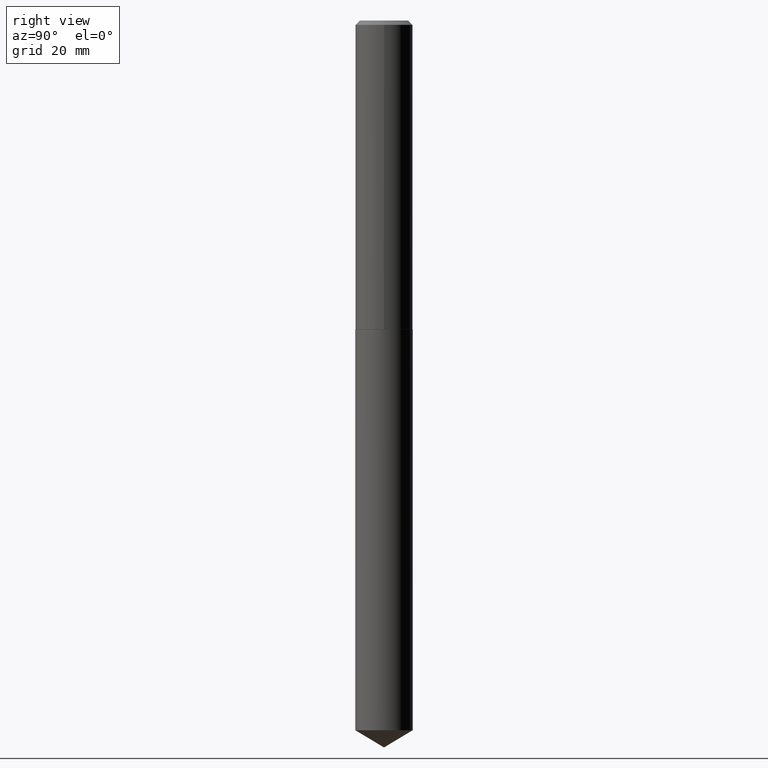
[diagram: clean part render]
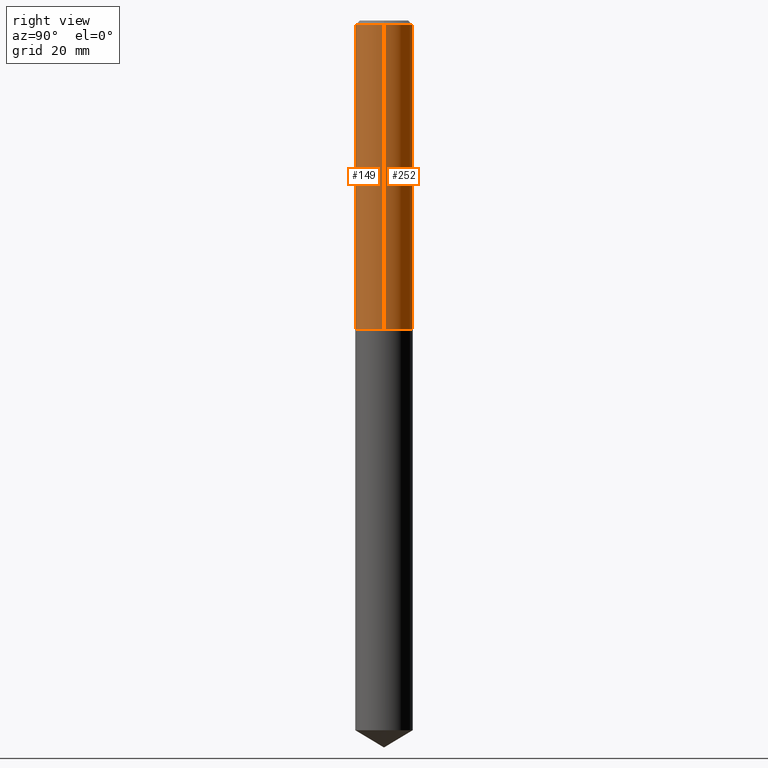
[diagram: same view with one multi-face feature highlighted, each face labeled with its STEP entity id]
A machine part, right view. The highlighted faces form ONE feature: a constant-radius fillet chain: 2 tangent blend faces with common blend radius 5.2502 mm. The faces share edges in the B-rep.
Their STEP definitions:
[1] entity #252 (Cylinder):
#15 = VECTOR ( 'NONE', #345, 39.37007874015748143 ) ;
#27 = VERTEX_POINT ( 'NONE', #156 ) ;
#30 = ORIENTED_EDGE ( 'NONE', *, *, #352, .T. ) ;
#37 = CARTESIAN_POINT ( 'NONE',  ( -0.2067000000000002724, -6.296013514637144970E-15, -2.223900000000000432 ) ) ;
#48 = ORIENTED_EDGE ( 'NONE', *, *, #93, .F. ) ;
#50 = DIRECTION ( 'NONE',  ( -2.445468806185136597E-29, 3.491481338843145583E-15, 1.000000000000000000 ) ) ;
#55 = AXIS2_PLACEMENT_3D ( 'NONE', #314, #339, #138 ) ;
#56 = EDGE_CURVE ( 'NONE', #62, #201, #369, .T. ) ;
#60 = AXIS2_PLACEMENT_3D ( 'NONE', #377, #108, #102 ) ;
#62 = VERTEX_POINT ( 'NONE', #73 ) ;
#73 = CARTESIAN_POINT ( 'NONE',  ( 0.2067000000000002724, -9.208083734931026389E-15, -2.223900000000000432 ) ) ;
#81 = DIRECTION ( 'NONE',  ( 1.000000000000000000, -6.982962677686266711E-15, 4.876176775795936914E-29 ) ) ;
#93 = EDGE_CURVE ( 'NONE', #254, #27, #114, .T. ) ;
#99 = ORIENTED_EDGE ( 'NONE', *, *, #121, .F. ) ;
#102 = DIRECTION ( 'NONE',  ( 1.000000000000000000, -6.982962677686265133E-15, 0.000000000000000000 ) ) ;
#108 = DIRECTION ( 'NONE',  ( -2.445468806185136597E-29, 3.491481338843145583E-15, 1.000000000000000000 ) ) ;
#114 = CIRCLE ( 'NONE', #60, 0.2067000000000000226 ) ;
#121 = EDGE_CURVE ( 'NONE', #62, #254, #316, .T. ) ;
#135 = CARTESIAN_POINT ( 'NONE',  ( 0.2067000000000001336, -1.443378385477752202E-15, 1.007905739557020761E-29 ) ) ;
#138 = DIRECTION ( 'NONE',  ( 1.000000000000000000, -6.982962677686261977E-15, 0.000000000000000000 ) ) ;
#156 = CARTESIAN_POINT ( 'NONE',  ( -0.2067000000000000226, -2.468215235829932328E-15, -0.03125000000000021511 ) ) ;
#182 = AXIS2_PLACEMENT_3D ( 'NONE', #280, #50, #81 ) ;
#187 = CYLINDRICAL_SURFACE ( 'NONE', #182, 0.2067000000000001336 ) ;
#188 = EDGE_LOOP ( 'NONE', ( #359, #30, #48, #99 ) ) ;
#201 = VERTEX_POINT ( 'NONE', #37 ) ;
#249 = FACE_OUTER_BOUND ( 'NONE', #188, .T. ) ;
#252 = ADVANCED_FACE ( 'NONE', ( #249 ), #187, .T. ) ;
#254 = VERTEX_POINT ( 'NONE', #380 ) ;
#269 = CARTESIAN_POINT ( 'NONE',  ( -0.2067000000000001336, 1.468691834816128034E-15, -1.016743883155689846E-29 ) ) ;
#280 = CARTESIAN_POINT ( 'NONE',  ( 0.000000000000000000, 0.000000000000000000, 0.000000000000000000 ) ) ;
#300 = LINE ( 'NONE', #269, #320 ) ;
#314 = CARTESIAN_POINT ( 'NONE',  ( 5.438478078075126334E-29, -7.764705349453273595E-15, -2.223900000000000432 ) ) ;
#316 = LINE ( 'NONE', #135, #15 ) ;
#320 = VECTOR ( 'NONE', #351, 39.37007874015748143 ) ;
#339 = DIRECTION ( 'NONE',  ( -2.445468806185136597E-29, 3.491481338843145583E-15, 1.000000000000000000 ) ) ;
#345 = DIRECTION ( 'NONE',  ( -2.445468806185136877E-29, 3.491481338843145188E-15, 1.000000000000000000 ) ) ;
#351 = DIRECTION ( 'NONE',  ( -2.445468806185136877E-29, 3.491481338843145188E-15, 1.000000000000000000 ) ) ;
#352 = EDGE_CURVE ( 'NONE', #201, #27, #300, .T. ) ;
#359 = ORIENTED_EDGE ( 'NONE', *, *, #56, .T. ) ;
#369 = CIRCLE ( 'NONE', #55, 0.2067000000000002724 ) ;
#377 = CARTESIAN_POINT ( 'NONE',  ( 7.642090019328604414E-31, -1.091087918388490513E-16, -0.03125000000000021511 ) ) ;
#380 = CARTESIAN_POINT ( 'NONE',  ( 0.2067000000000000226, -1.552487177316600316E-15, -0.03125000000000021511 ) ) ;
[2] entity #149 (Cylinder):
#4 = ORIENTED_EDGE ( 'NONE', *, *, #121, .T. ) ;
#12 = DIRECTION ( 'NONE',  ( 1.000000000000000000, -6.982962677686261977E-15, 0.000000000000000000 ) ) ;
#14 = DIRECTION ( 'NONE',  ( -2.445468806185136597E-29, 3.491481338843145583E-15, 1.000000000000000000 ) ) ;
#15 = VECTOR ( 'NONE', #345, 39.37007874015748143 ) ;
#20 = EDGE_CURVE ( 'NONE', #27, #254, #190, .T. ) ;
#27 = VERTEX_POINT ( 'NONE', #156 ) ;
#37 = CARTESIAN_POINT ( 'NONE',  ( -0.2067000000000002724, -6.296013514637144970E-15, -2.223900000000000432 ) ) ;
#62 = VERTEX_POINT ( 'NONE', #73 ) ;
#73 = CARTESIAN_POINT ( 'NONE',  ( 0.2067000000000002724, -9.208083734931026389E-15, -2.223900000000000432 ) ) ;
#86 = CARTESIAN_POINT ( 'NONE',  ( 5.438478078075126334E-29, -7.764705349453273595E-15, -2.223900000000000432 ) ) ;
#101 = AXIS2_PLACEMENT_3D ( 'NONE', #248, #278, #363 ) ;
#121 = EDGE_CURVE ( 'NONE', #62, #254, #316, .T. ) ;
#126 = CIRCLE ( 'NONE', #239, 0.2067000000000002724 ) ;
#127 = ORIENTED_EDGE ( 'NONE', *, *, #20, .F. ) ;
#135 = CARTESIAN_POINT ( 'NONE',  ( 0.2067000000000001336, -1.443378385477752202E-15, 1.007905739557020761E-29 ) ) ;
#149 = ADVANCED_FACE ( 'NONE', ( #166 ), #259, .T. ) ;
#156 = CARTESIAN_POINT ( 'NONE',  ( -0.2067000000000000226, -2.468215235829932328E-15, -0.03125000000000021511 ) ) ;
#166 = FACE_OUTER_BOUND ( 'NONE', #170, .T. ) ;
#170 = EDGE_LOOP ( 'NONE', ( #205, #333, #4, #127 ) ) ;
#190 = CIRCLE ( 'NONE', #101, 0.2067000000000000226 ) ;
#201 = VERTEX_POINT ( 'NONE', #37 ) ;
#202 = DIRECTION ( 'NONE',  ( 1.000000000000000000, -6.982962677686266711E-15, 4.876176775795936914E-29 ) ) ;
#205 = ORIENTED_EDGE ( 'NONE', *, *, #352, .F. ) ;
#221 = CARTESIAN_POINT ( 'NONE',  ( 0.000000000000000000, 0.000000000000000000, 0.000000000000000000 ) ) ;
#237 = AXIS2_PLACEMENT_3D ( 'NONE', #221, #338, #202 ) ;
#239 = AXIS2_PLACEMENT_3D ( 'NONE', #86, #14, #12 ) ;
#248 = CARTESIAN_POINT ( 'NONE',  ( 7.642090019328604414E-31, -1.091087918388490513E-16, -0.03125000000000021511 ) ) ;
#254 = VERTEX_POINT ( 'NONE', #380 ) ;
#259 = CYLINDRICAL_SURFACE ( 'NONE', #237, 0.2067000000000001336 ) ;
#269 = CARTESIAN_POINT ( 'NONE',  ( -0.2067000000000001336, 1.468691834816128034E-15, -1.016743883155689846E-29 ) ) ;
#278 = DIRECTION ( 'NONE',  ( -2.445468806185136597E-29, 3.491481338843145583E-15, 1.000000000000000000 ) ) ;
#300 = LINE ( 'NONE', #269, #320 ) ;
#315 = EDGE_CURVE ( 'NONE', #201, #62, #126, .T. ) ;
#316 = LINE ( 'NONE', #135, #15 ) ;
#320 = VECTOR ( 'NONE', #351, 39.37007874015748143 ) ;
#333 = ORIENTED_EDGE ( 'NONE', *, *, #315, .T. ) ;
#338 = DIRECTION ( 'NONE',  ( -2.445468806185136597E-29, 3.491481338843145583E-15, 1.000000000000000000 ) ) ;
#345 = DIRECTION ( 'NONE',  ( -2.445468806185136877E-29, 3.491481338843145188E-15, 1.000000000000000000 ) ) ;
#351 = DIRECTION ( 'NONE',  ( -2.445468806185136877E-29, 3.491481338843145188E-15, 1.000000000000000000 ) ) ;
#352 = EDGE_CURVE ( 'NONE', #201, #27, #300, .T. ) ;
#363 = DIRECTION ( 'NONE',  ( 1.000000000000000000, -6.982962677686265133E-15, 0.000000000000000000 ) ) ;
#380 = CARTESIAN_POINT ( 'NONE',  ( 0.2067000000000000226, -1.552487177316600316E-15, -0.03125000000000021511 ) ) ;